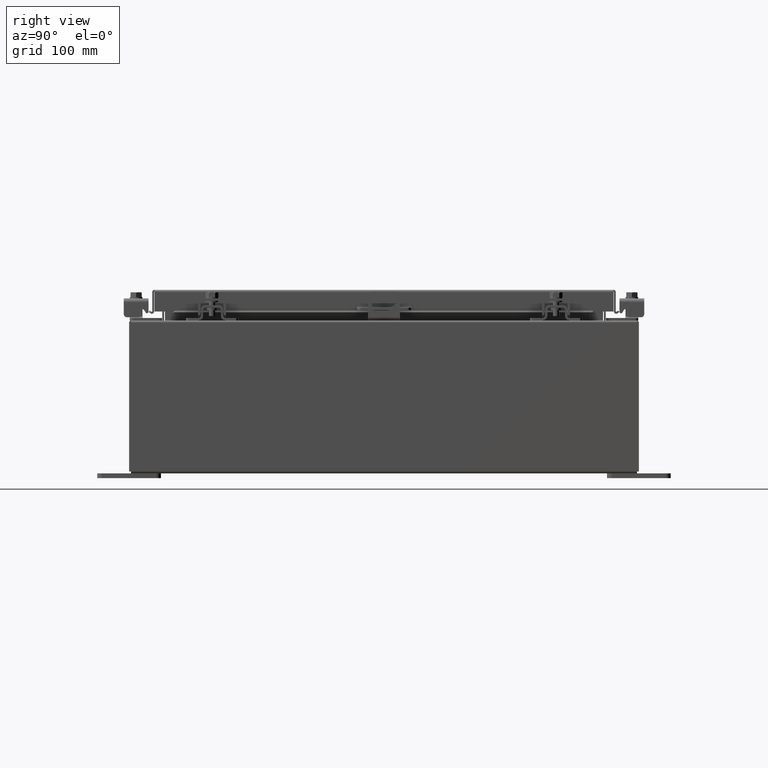
[diagram: clean part render]
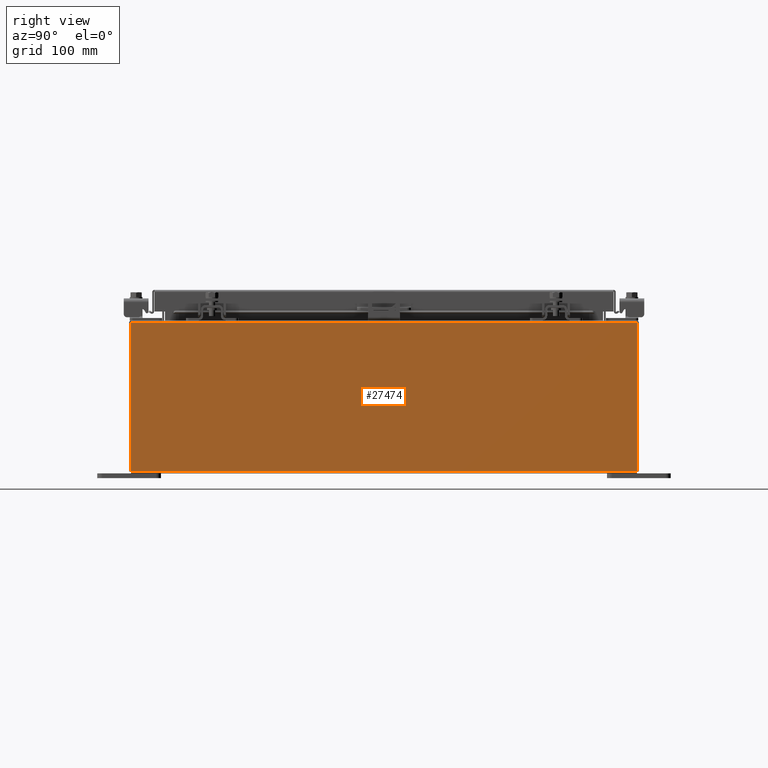
[diagram: same view with one face highlighted and labeled with its STEP entity id]
A machine part, right view. The second image highlights one B-rep face of the part: STEP entity #27474.
In plain terms, the highlighted planar face has unit normal (-1, 0, 0).
Its self-contained STEP definition (entity closure, byte-faithful):
#49 = LINE ( 'NONE', #1956, #17514 ) ;
#1956 = CARTESIAN_POINT ( 'NONE',  ( 8.000000000000023100, 9.925299999999992900, 5.837599999999999200 ) ) ;
#2363 = CARTESIAN_POINT ( 'NONE',  ( 8.000000000000001800, 0.0000000000000000000, -2.829253492156560500E-014 ) ) ;
#3356 = LINE ( 'NONE', #18990, #10146 ) ;
#4721 = AXIS2_PLACEMENT_3D ( 'NONE', #2363, #9231, #25108 ) ;
#5974 = CARTESIAN_POINT ( 'NONE',  ( 8.000000000000001800, -9.925300000000001800, -2.829253492156560500E-014 ) ) ;
#6452 = VERTEX_POINT ( 'NONE', #22143 ) ;
#6955 = PLANE ( 'NONE',  #4721 ) ;
#7530 = CARTESIAN_POINT ( 'NONE',  ( 8.000000000000023100, 9.925299999999991100, 5.837599999999999200 ) ) ;
#7760 = ORIENTED_EDGE ( 'NONE', *, *, #8539, .F. ) ;
#8539 = EDGE_CURVE ( 'NONE', #15372, #6452, #17098, .T. ) ;
#9231 = DIRECTION ( 'NONE',  ( -1.000000000000000000, 0.0000000000000000000, 3.503965158194251300E-015 ) ) ;
#9678 = VERTEX_POINT ( 'NONE', #7530 ) ;
#10146 = VECTOR ( 'NONE', #23456, 39.37007874015748100 ) ;
#10555 = DIRECTION ( 'NONE',  ( -3.503965158194252100E-015, 0.0000000000000000000, -1.000000000000000000 ) ) ;
#10822 = ORIENTED_EDGE ( 'NONE', *, *, #18206, .T. ) ;
#13320 = DIRECTION ( 'NONE',  ( -0.0000000000000000000, -1.000000000000000000, -0.0000000000000000000 ) ) ;
#14136 = EDGE_LOOP ( 'NONE', ( #22954, #10822, #7760, #16388 ) ) ;
#15372 = VERTEX_POINT ( 'NONE', #25571 ) ;
#15375 = FACE_OUTER_BOUND ( 'NONE', #14136, .T. ) ;
#16388 = ORIENTED_EDGE ( 'NONE', *, *, #16400, .T. ) ;
#16400 = EDGE_CURVE ( 'NONE', #15372, #9678, #3356, .T. ) ;
#17098 = LINE ( 'NONE', #23234, #27760 ) ;
#17514 = VECTOR ( 'NONE', #13320, 39.37007874015748100 ) ;
#18206 = EDGE_CURVE ( 'NONE', #28036, #6452, #19645, .T. ) ;
#18990 = CARTESIAN_POINT ( 'NONE',  ( 8.000000000000001800, 9.925299999999998200, -2.829253492156560500E-014 ) ) ;
#19645 = LINE ( 'NONE', #5974, #24933 ) ;
#22143 = CARTESIAN_POINT ( 'NONE',  ( 8.000000000000001800, -9.925300000000001800, 0.01299999999999984500 ) ) ;
#22429 = CARTESIAN_POINT ( 'NONE',  ( 8.000000000000023100, -9.925300000000001800, 5.837599999999999200 ) ) ;
#22954 = ORIENTED_EDGE ( 'NONE', *, *, #27405, .T. ) ;
#23234 = CARTESIAN_POINT ( 'NONE',  ( 8.000000000000001800, -9.925300000000001800, 0.01299999999999984700 ) ) ;
#23456 = DIRECTION ( 'NONE',  ( 3.503965158194252100E-015, 0.0000000000000000000, 1.000000000000000000 ) ) ;
#24933 = VECTOR ( 'NONE', #10555, 39.37007874015748100 ) ;
#25108 = DIRECTION ( 'NONE',  ( 3.503965158194251300E-015, 0.0000000000000000000, 1.000000000000000000 ) ) ;
#25494 = DIRECTION ( 'NONE',  ( -0.0000000000000000000, -1.000000000000000000, -0.0000000000000000000 ) ) ;
#25571 = CARTESIAN_POINT ( 'NONE',  ( 8.000000000000001800, 9.925299999999996500, 0.01299999999999984700 ) ) ;
#27405 = EDGE_CURVE ( 'NONE', #9678, #28036, #49, .T. ) ;
#27474 = ADVANCED_FACE ( 'NONE', ( #15375 ), #6955, .F. ) ;
#27760 = VECTOR ( 'NONE', #25494, 39.37007874015748100 ) ;
#28036 = VERTEX_POINT ( 'NONE', #22429 ) ;